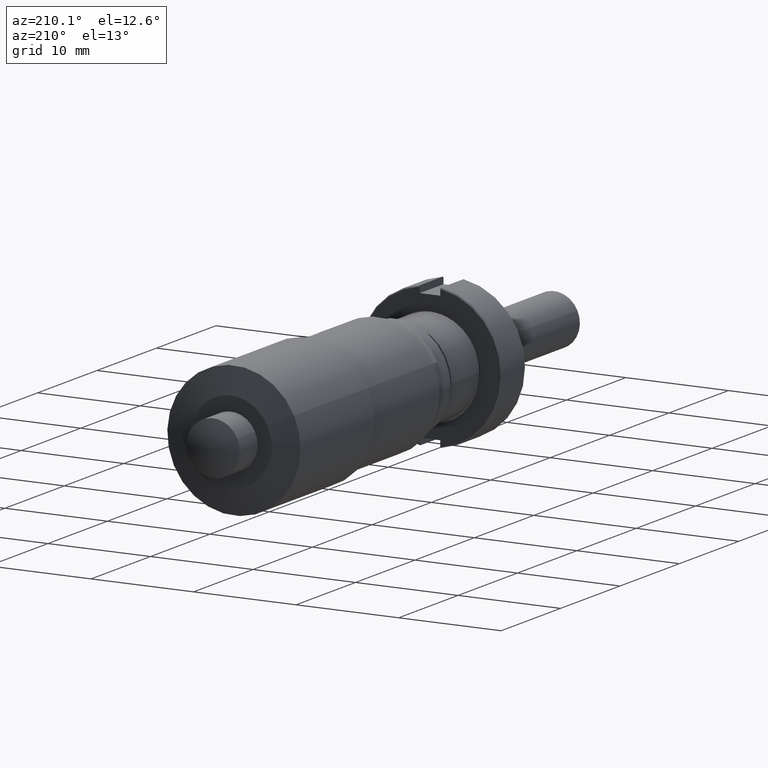
[diagram: clean part render]
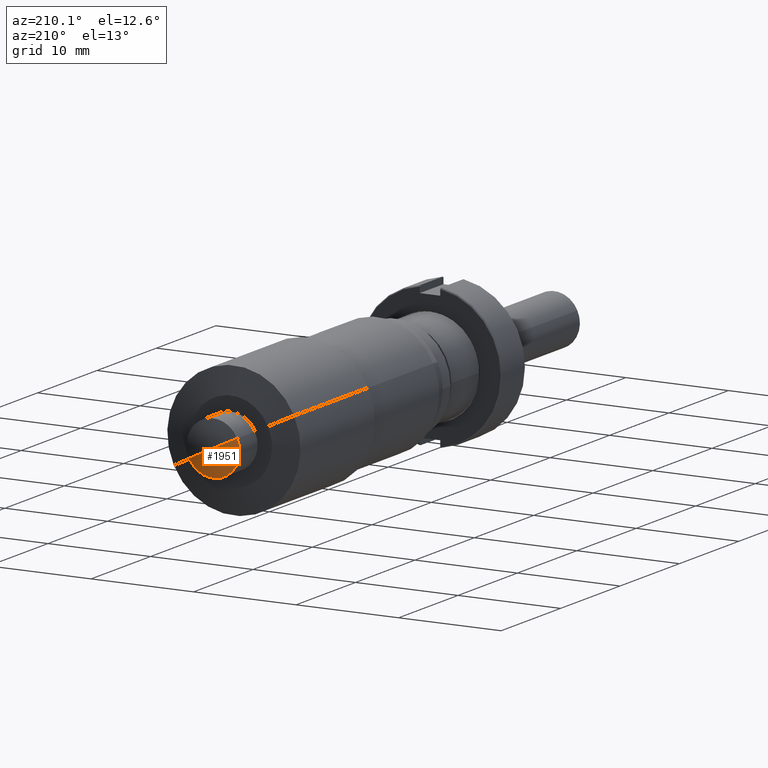
[diagram: same view with one face highlighted and labeled with its STEP entity id]
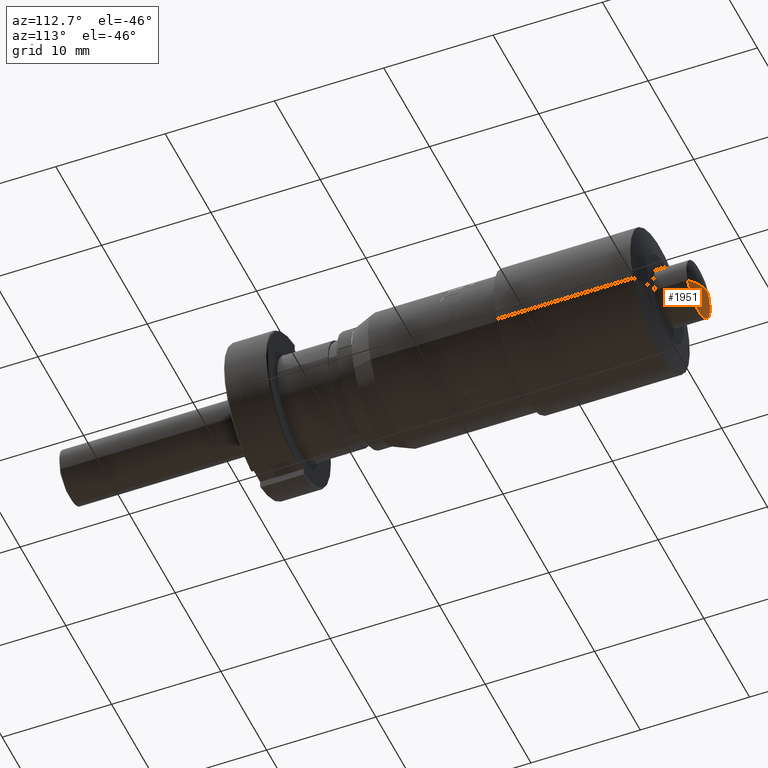
[diagram: same view with one face highlighted and labeled with its STEP entity id]
A machine part, auxiliary view. The second image highlights one B-rep face of the part: STEP entity #1951.
A second angle (auxiliary view) of the same face is appended — the face is thin or edge-on in the first view.
In plain terms, the highlighted toroidal blend (fillet) surface has major radius 0.0122 mm and minor (blend) radius 6.9487 mm.
Its self-contained STEP definition (entity closure, byte-faithful):
#121 = DIRECTION ( 'NONE',  ( -0.9019442983237868600, 0.0000000000000000000, 0.4318523853369478600 ) ) ;
#593 = EDGE_LOOP ( 'NONE', ( #4888, #13829, #7231 ) ) ;
#597 = DIRECTION ( 'NONE',  ( -0.4318523853369479700, -5.026851581177529100E-017, -0.9019442983237869700 ) ) ;
#1028 = DIRECTION ( 'NONE',  ( 0.4318523853369478600, 5.026851581177527800E-017, 0.9019442983237869700 ) ) ;
#1074 = AXIS2_PLACEMENT_3D ( 'NONE', #6962, #597, #8056 ) ;
#1278 = VERTEX_POINT ( 'NONE', #11909 ) ;
#1951 = ADVANCED_FACE ( 'NONE', ( #3279 ), #13347, .T. ) ;
#2210 = EDGE_CURVE ( 'NONE', #6883, #4999, #12656, .T. ) ;
#2927 = CARTESIAN_POINT ( 'NONE',  ( 16.44771368841735900, 41.53617999132213600, 19.72828104131429300 ) ) ;
#3279 = FACE_OUTER_BOUND ( 'NONE', #593, .T. ) ;
#4022 = CIRCLE ( 'NONE', #10763, 6.948660499999999000 ) ;
#4342 = EDGE_CURVE ( 'NONE', #1278, #6883, #11308, .T. ) ;
#4888 = ORIENTED_EDGE ( 'NONE', *, *, #13439, .F. ) ;
#4999 = VERTEX_POINT ( 'NONE', #6800 ) ;
#5259 = DIRECTION ( 'NONE',  ( -1.101876641632675700E-016, 1.000000000000000000, -2.975472225002335400E-018 ) ) ;
#6506 = DIRECTION ( 'NONE',  ( -1.101876641632675700E-016, 1.000000000000000000, -2.975472225002335400E-018 ) ) ;
#6800 = CARTESIAN_POINT ( 'NONE',  ( 18.79276886405924100, 42.03602059280117200, 18.60546483943821300 ) ) ;
#6883 = VERTEX_POINT ( 'NONE', #2927 ) ;
#6962 = CARTESIAN_POINT ( 'NONE',  ( 18.78177103497932500, 35.08737079132214400, 18.61073061774682500 ) ) ;
#7231 = ORIENTED_EDGE ( 'NONE', *, *, #2210, .T. ) ;
#7353 = CARTESIAN_POINT ( 'NONE',  ( 18.79276886405921600, 35.08737079132214400, 18.60546483943822700 ) ) ;
#7393 = CARTESIAN_POINT ( 'NONE',  ( 18.80376669313910300, 35.08737079132214400, 18.60019906112962600 ) ) ;
#8056 = DIRECTION ( 'NONE',  ( -0.9019442983237869700, 0.0000000000000000000, 0.4318523853369478600 ) ) ;
#8490 = DIRECTION ( 'NONE',  ( 0.9019442983237869700, 0.0000000000000000000, -0.4318523853369478600 ) ) ;
#9037 = AXIS2_PLACEMENT_3D ( 'NONE', #12987, #6506, #121 ) ;
#10763 = AXIS2_PLACEMENT_3D ( 'NONE', #7393, #1028, #8490 ) ;
#11308 = CIRCLE ( 'NONE', #9037, 2.600000000000005000 ) ;
#11909 = CARTESIAN_POINT ( 'NONE',  ( 21.13782403970109100, 41.53617999132213600, 17.48264863756214600 ) ) ;
#12656 = CIRCLE ( 'NONE', #1074, 6.948660499999999000 ) ;
#12796 = DIRECTION ( 'NONE',  ( -0.9019442983237866400, -9.809817065980433700E-017, 0.4318523853369481400 ) ) ;
#12987 = CARTESIAN_POINT ( 'NONE',  ( 18.79276886405923700, 41.53617999132213600, 18.60546483943821600 ) ) ;
#13347 = TOROIDAL_SURFACE ( 'NONE', #13535, 0.01219346815577161500, 6.948660499999999000 ) ;
#13439 = EDGE_CURVE ( 'NONE', #1278, #4999, #4022, .T. ) ;
#13535 = AXIS2_PLACEMENT_3D ( 'NONE', #7353, #5259, #12796 ) ;
#13829 = ORIENTED_EDGE ( 'NONE', *, *, #4342, .T. ) ;